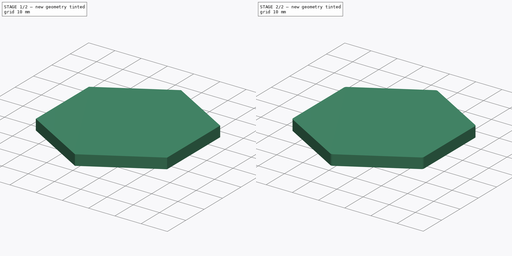
[diagram: build sequence overview — one tinted view per stage of 2, left to right]
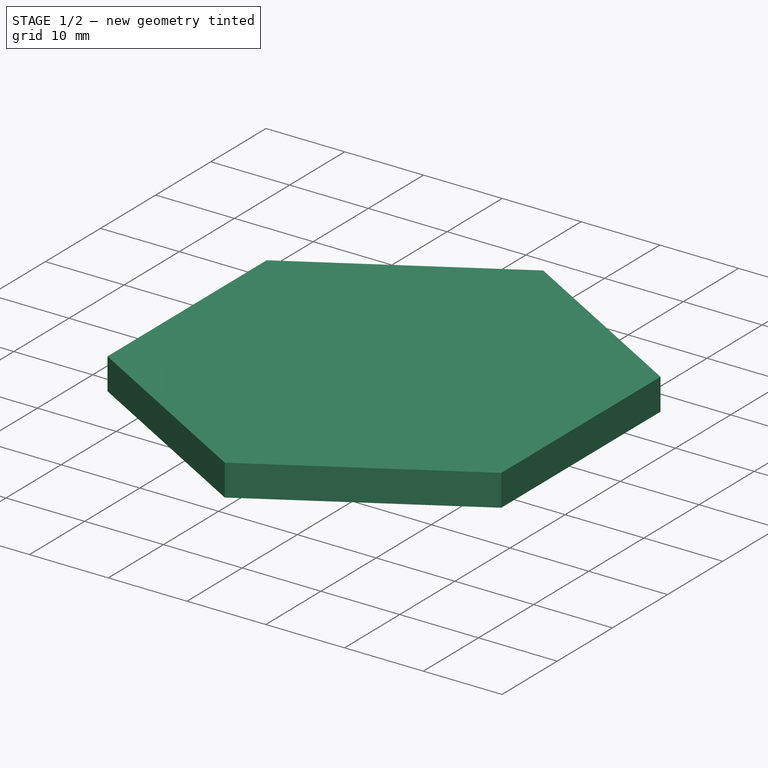
[diagram: stage 1 of 2 — iso view after this stage's code; geometry added in this stage tinted green]
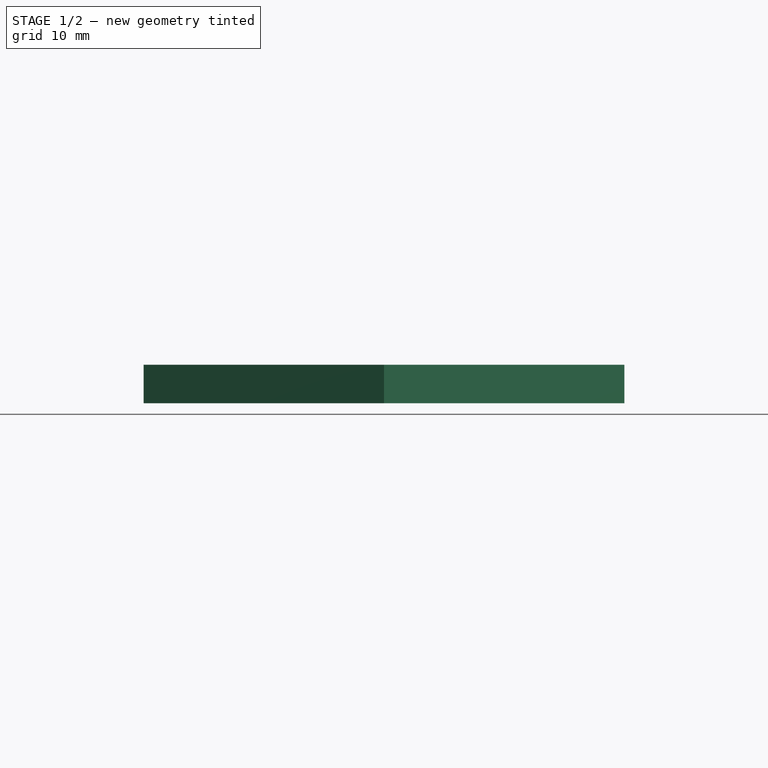
[diagram: stage 1 of 2 — front view after this stage's code; geometry added in this stage tinted green]
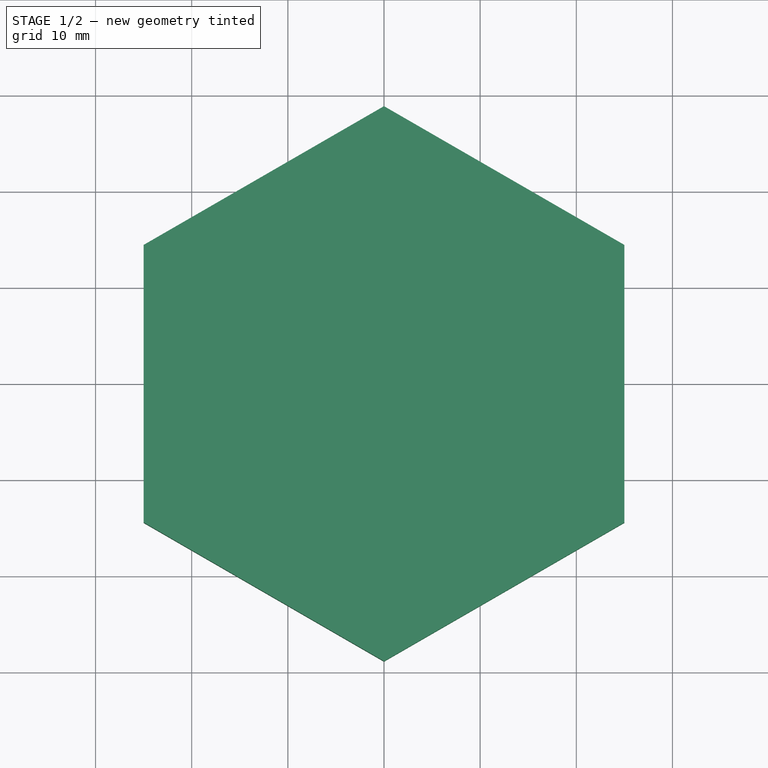
[diagram: stage 1 of 2 — top view after this stage's code; geometry added in this stage tinted green]
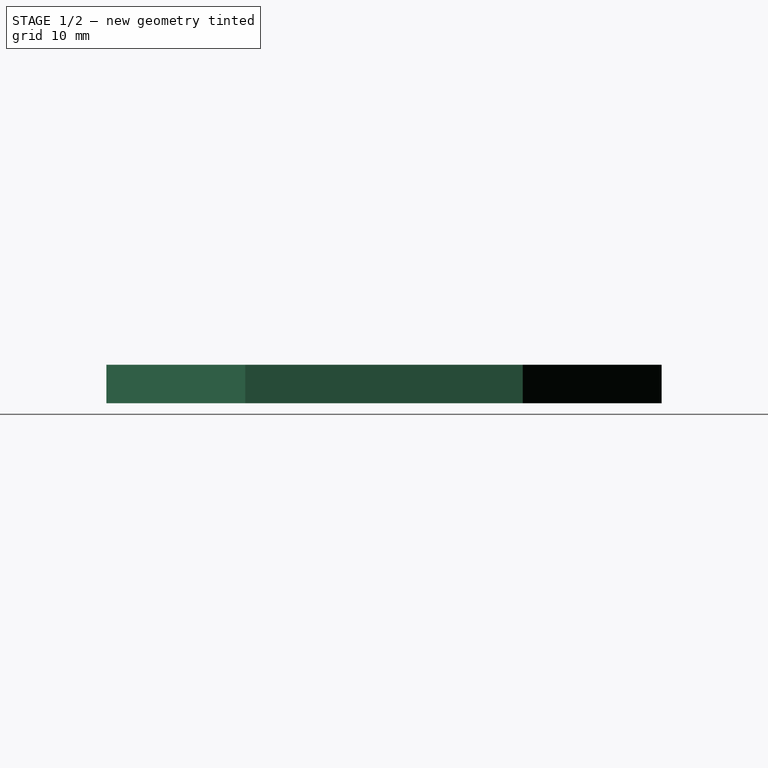
[diagram: stage 1 of 2 — right view after this stage's code; geometry added in this stage tinted green]
FCSTD DOCUMENT  (FreeCAD 0.21R33771 (Git))
Label: OJT1_T20R01_hexagon
License: All rights reserved
LicenseURL: https://en.wikipedia.org/wiki/All_rights_reserved
objects: Sketcher::SketchObject×1, PartDesign::Pad×1, PartDesign::Body×1, Part::Fillet×1
note: 5 computed .brp shape members not serialized (recipe doc carries the construction recipe); baked Part::Feature solids carry a one-line shape summary decoded from their .brp

FEATURE [Sketcher::SketchObject] Sketch
  FullyConstrained = true
  MapMode = 5
  Support = -> [XY_Plane]
  sketch-geometry (7):
    g0: LineSegment StartX=-25 StartY=14.4338 StartZ=0 EndX=0 EndY=28.8675 EndZ=0
    g1: LineSegment StartX=0 StartY=28.8675 StartZ=0 EndX=25 EndY=14.4338 EndZ=0
    g2: LineSegment StartX=25 StartY=14.4338 StartZ=0 EndX=25 EndY=-14.4338 EndZ=0
    g3: LineSegment StartX=25 StartY=-14.4338 StartZ=0 EndX=0 EndY=-28.8675 EndZ=0
    g4: LineSegment StartX=0 StartY=-28.8675 StartZ=0 EndX=-25 EndY=-14.4338 EndZ=0
    g5: LineSegment StartX=-25 StartY=-14.4338 StartZ=0 EndX=-25 EndY=14.4338 EndZ=0
    g6: LineSegment StartX=0 StartY=0 StartZ=0 EndX=-25 EndY=14.4338 EndZ=0
  constraints (17):
    c: Coincident(g0,g1)
    c: Coincident(g1,g2)
    c: Coincident(g2,g3)
    c: Coincident(g3,g4)
    c: Coincident(g4,g5)
    c: Coincident(g0,g5)
    c: Vertical(g5)
    c: Symmetric(g0,g1,g-2)
    c: Equal(g5,g0)
    c: Equal(g0,g4)
    c: PointOnObject(g0,g-2)
    c: Coincident(g6,g-1)
    c: Coincident(g6,g0)
    c: Angle(g-2,g6) = 1.0472
    c: DistanceX(g4,g2) = 50
    c: Symmetric(g3,g0,g-1)
    c: Symmetric(g4,g2,g-2)
FEATURE [PartDesign::Pad] Pad
  Direction = (0,0,1)
  Length = 4
  Length2 = 10
  Profile = -> Sketch
  ReferenceAxis = -> Sketch [N_Axis]
  Type = 0
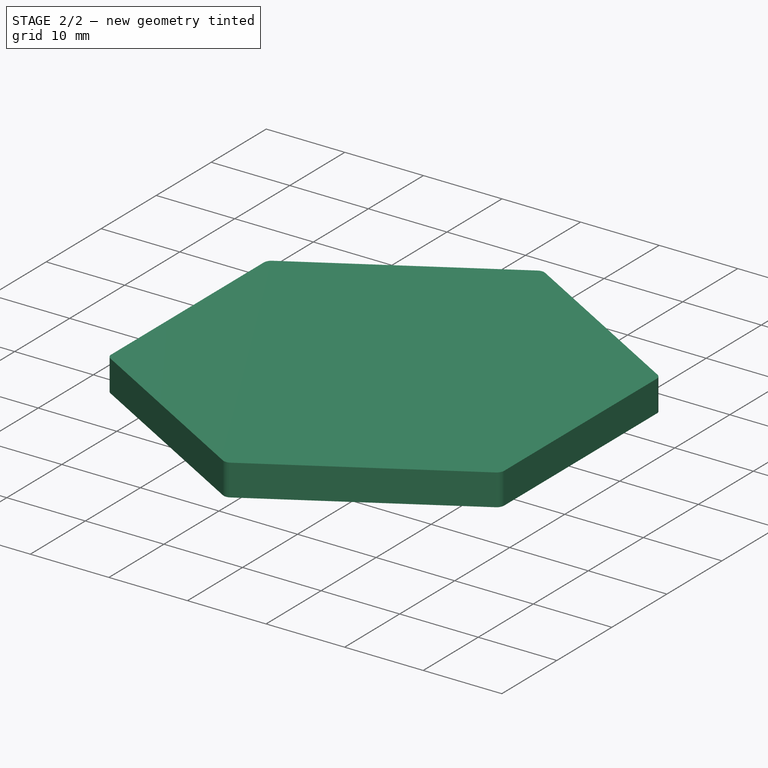
[diagram: stage 2 of 2 — iso view after this stage's code; geometry added in this stage tinted green]
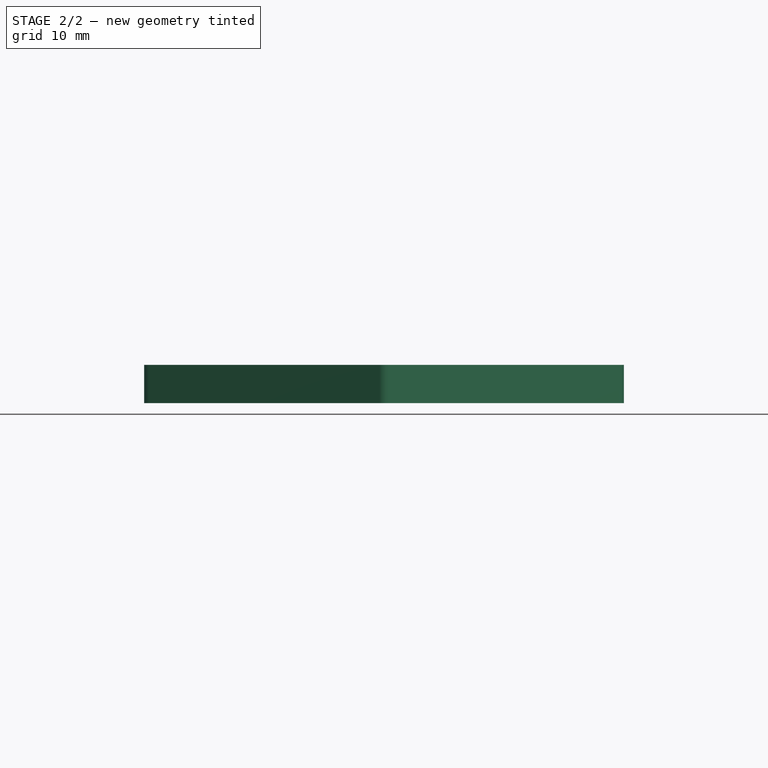
[diagram: stage 2 of 2 — front view after this stage's code; geometry added in this stage tinted green]
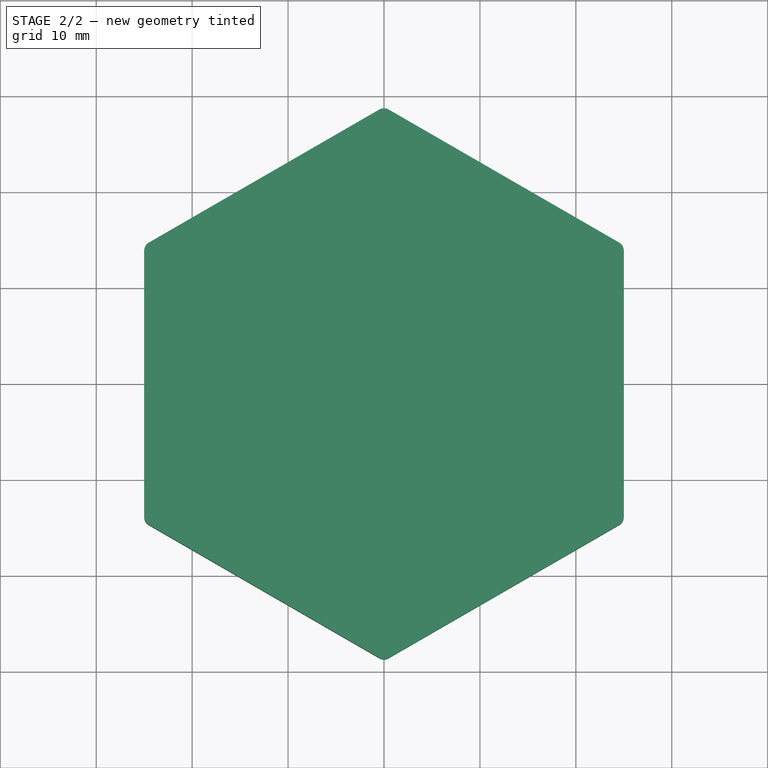
[diagram: stage 2 of 2 — top view after this stage's code; geometry added in this stage tinted green]
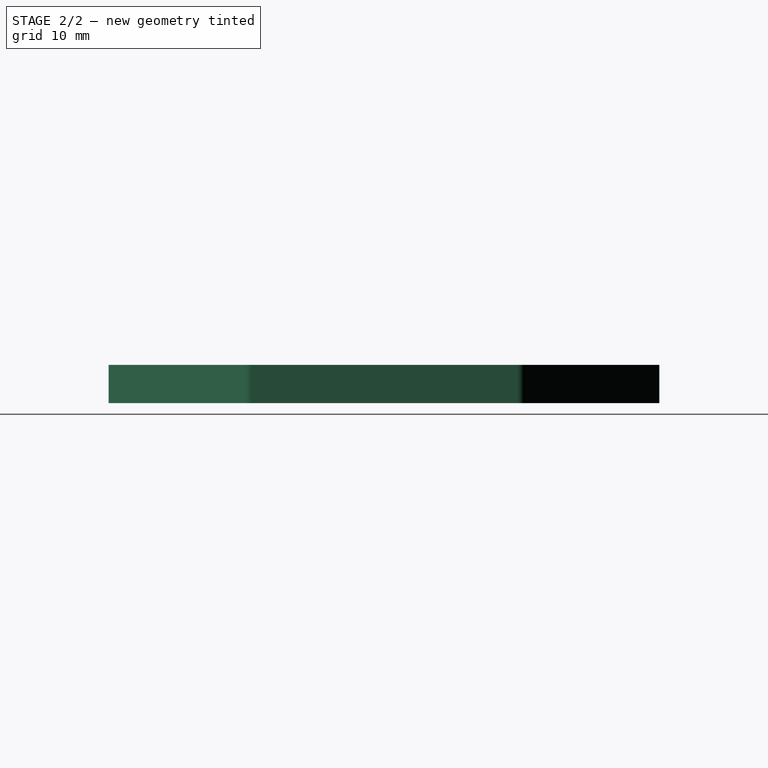
[diagram: stage 2 of 2 — right view after this stage's code; geometry added in this stage tinted green]
FEATURE [PartDesign::Body] Body  label="hexagon"
  Group = -> [Sketch,Pad]
  Origin = -> Origin
  Tip = -> Pad
FEATURE [Part::Fillet] Fillet
  Base = -> Pad
  Edges = 6 edges r=1: [Edge1,Edge2,Edge5,Edge8,Edge11,Edge14]
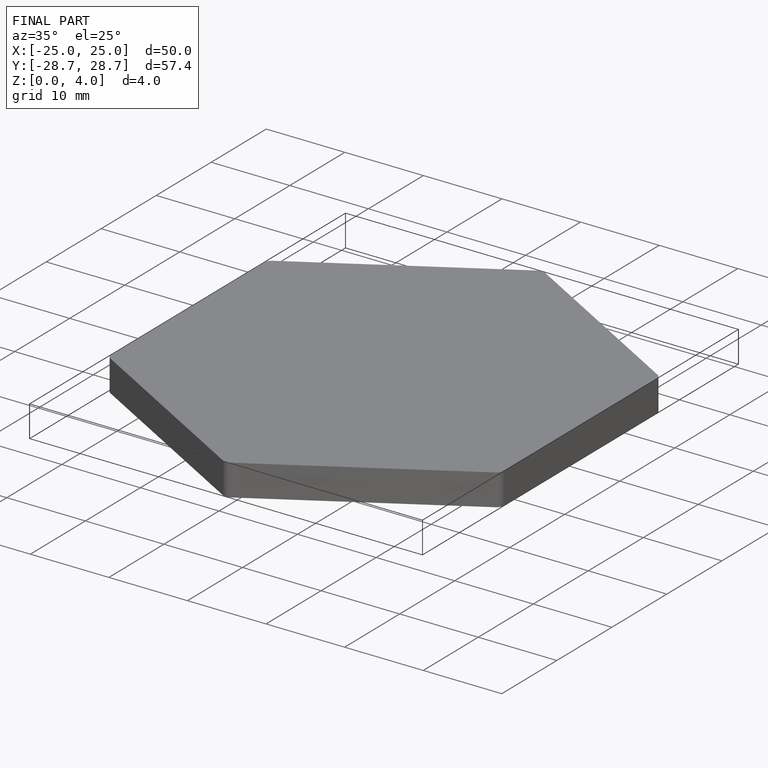
[diagram: finished part — iso view with bounding-box wireframe]
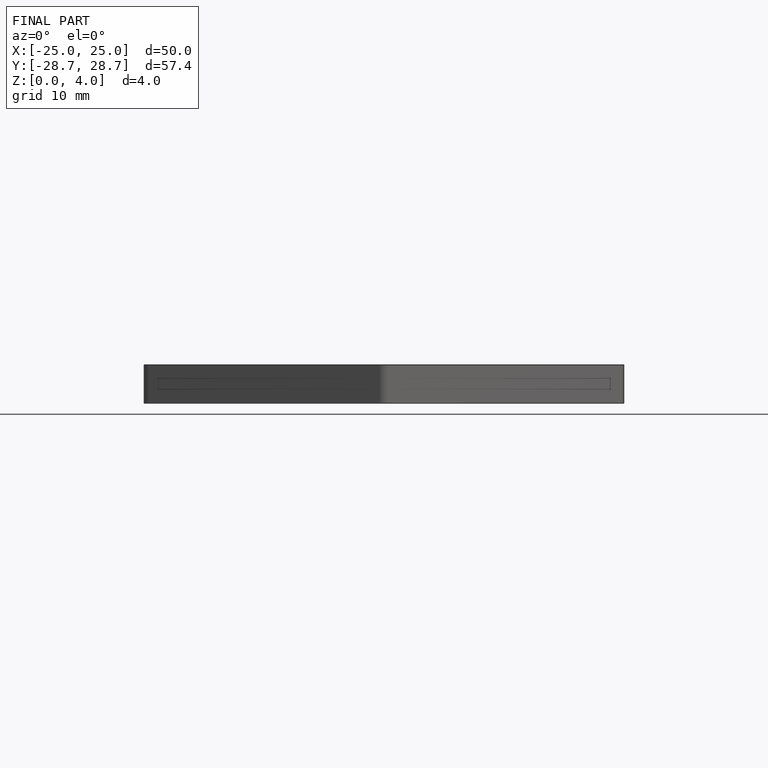
[diagram: finished part — front view with bounding-box wireframe]
